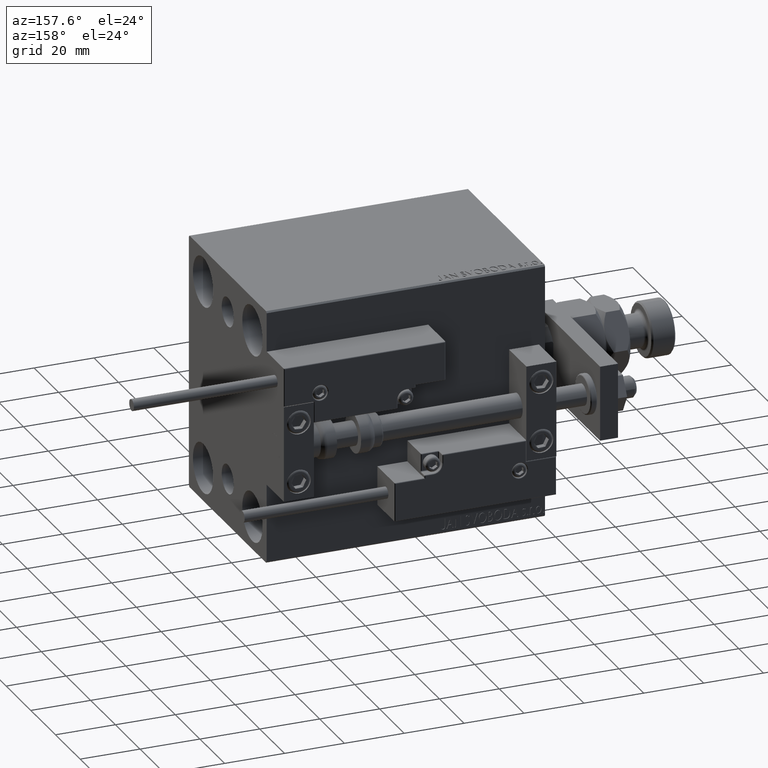
[diagram: clean part render]
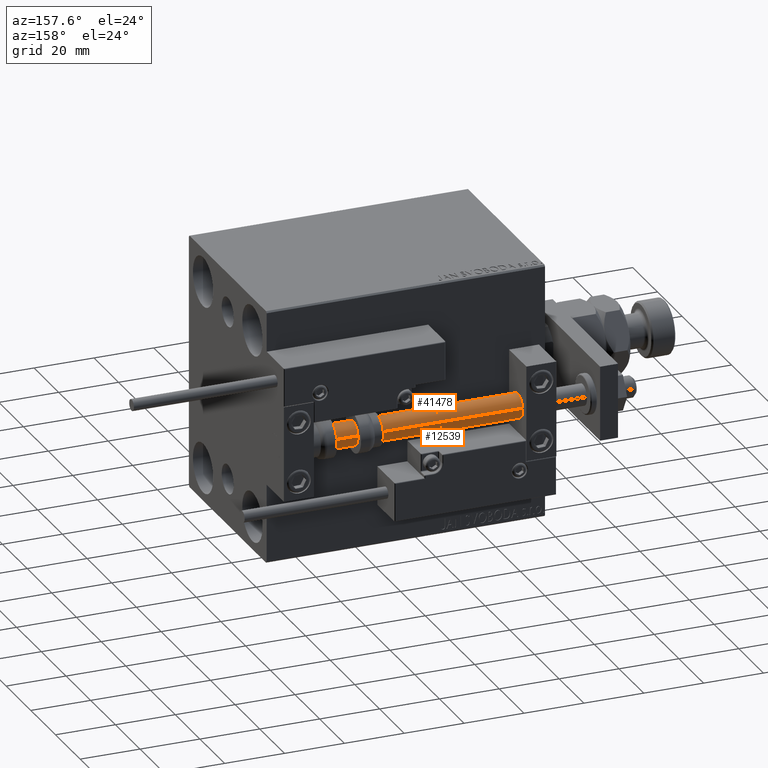
[diagram: same view with one multi-face feature highlighted, each face labeled with its STEP entity id]
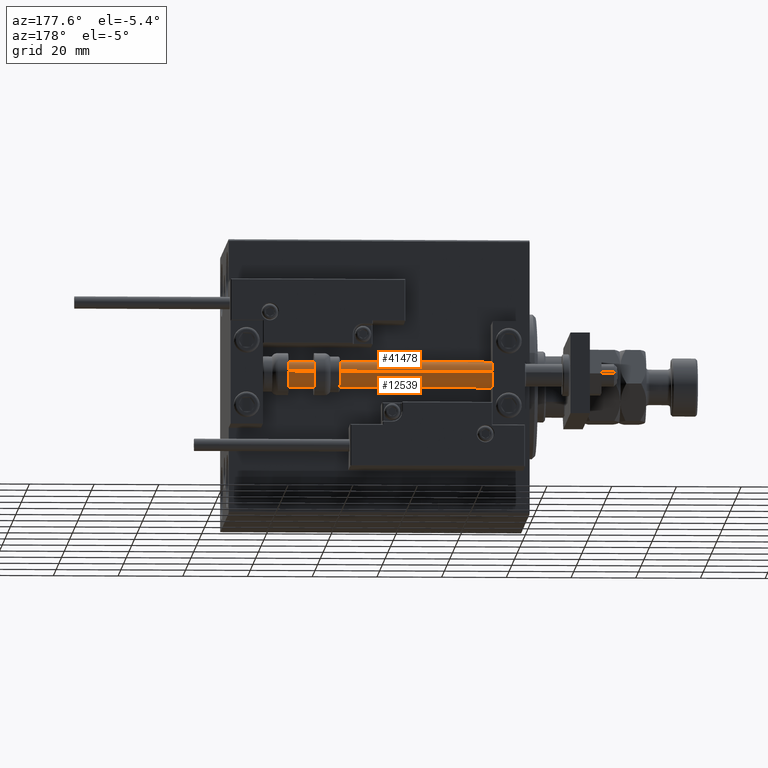
[diagram: same view with one multi-face feature highlighted, each face labeled with its STEP entity id]
A machine part, auxiliary view. The highlighted faces form ONE feature: a constant-radius fillet chain: 2 tangent blend faces with common blend radius 4 mm. The faces share edges in the B-rep.
A second angle (auxiliary view) of the same feature is appended — it is thin or edge-on in the first view.
Their STEP definitions:
[1] entity #41478 (Cylinder):
#1295 = EDGE_CURVE ( 'NONE', #5385, #18439, #50177, .T. ) ;
#2745 = ORIENTED_EDGE ( 'NONE', *, *, #23688, .T. ) ;
#3671 = AXIS2_PLACEMENT_3D ( 'NONE', #8959, #16276, #9214 ) ;
#4830 = VECTOR ( 'NONE', #7949, 1000.000000000000000 ) ;
#4915 = CARTESIAN_POINT ( 'NONE',  ( -4.000000000000000000, 0.000000000000000000, 93.00000000000000000 ) ) ;
#4990 = LINE ( 'NONE', #29322, #4830 ) ;
#5385 = VERTEX_POINT ( 'NONE', #4915 ) ;
#5744 = CIRCLE ( 'NONE', #51658, 4.000000000000000000 ) ;
#7949 = DIRECTION ( 'NONE',  ( -0.000000000000000000, -0.000000000000000000, -1.000000000000000000 ) ) ;
#8700 = CYLINDRICAL_SURFACE ( 'NONE', #3671, 4.000000000000000000 ) ;
#8959 = CARTESIAN_POINT ( 'NONE',  ( 0.000000000000000000, 0.000000000000000000, 93.00000000000000000 ) ) ;
#9214 = DIRECTION ( 'NONE',  ( -1.000000000000000000, 0.000000000000000000, 0.000000000000000000 ) ) ;
#10271 = ORIENTED_EDGE ( 'NONE', *, *, #11363, .T. ) ;
#11363 = EDGE_CURVE ( 'NONE', #47845, #18439, #5744, .T. ) ;
#13602 = EDGE_CURVE ( 'NONE', #18527, #5385, #46735, .T. ) ;
#13690 = ORIENTED_EDGE ( 'NONE', *, *, #1295, .F. ) ;
#15146 = DIRECTION ( 'NONE',  ( -0.000000000000000000, -0.000000000000000000, 1.000000000000000000 ) ) ;
#16276 = DIRECTION ( 'NONE',  ( -0.000000000000000000, -0.000000000000000000, -1.000000000000000000 ) ) ;
#18252 = CARTESIAN_POINT ( 'NONE',  ( -4.000000000000000000, 0.000000000000000000, 2.000000000000029310 ) ) ;
#18439 = VERTEX_POINT ( 'NONE', #18252 ) ;
#18527 = VERTEX_POINT ( 'NONE', #46488 ) ;
#18530 = CARTESIAN_POINT ( 'NONE',  ( -4.000000000000000000, 0.000000000000000000, 93.00000000000000000 ) ) ;
#19707 = CARTESIAN_POINT ( 'NONE',  ( 4.000000000000000000, 4.898587196589411843E-16, 2.000000000000029310 ) ) ;
#23688 = EDGE_CURVE ( 'NONE', #18527, #47845, #4990, .T. ) ;
#25175 = FACE_OUTER_BOUND ( 'NONE', #44030, .T. ) ;
#25600 = DIRECTION ( 'NONE',  ( 1.000000000000000000, 0.000000000000000000, 0.000000000000000000 ) ) ;
#27439 = CARTESIAN_POINT ( 'NONE',  ( 0.000000000000000000, 0.000000000000000000, 2.000000000000029310 ) ) ;
#29262 = DIRECTION ( 'NONE',  ( -0.000000000000000000, -0.000000000000000000, -1.000000000000000000 ) ) ;
#29322 = CARTESIAN_POINT ( 'NONE',  ( 4.000000000000000000, 4.898587196589411843E-16, 93.00000000000000000 ) ) ;
#37614 = CARTESIAN_POINT ( 'NONE',  ( 0.000000000000000000, 0.000000000000000000, 93.00000000000000000 ) ) ;
#39010 = ORIENTED_EDGE ( 'NONE', *, *, #13602, .F. ) ;
#41478 = ADVANCED_FACE ( 'NONE', ( #25175 ), #8700, .T. ) ;
#41738 = AXIS2_PLACEMENT_3D ( 'NONE', #37614, #42055, #25600 ) ;
#42055 = DIRECTION ( 'NONE',  ( 0.000000000000000000, 0.000000000000000000, 1.000000000000000000 ) ) ;
#43053 = VECTOR ( 'NONE', #29262, 1000.000000000000000 ) ;
#43384 = DIRECTION ( 'NONE',  ( 1.000000000000000000, 0.000000000000000000, 0.000000000000000000 ) ) ;
#44030 = EDGE_LOOP ( 'NONE', ( #39010, #2745, #10271, #13690 ) ) ;
#46488 = CARTESIAN_POINT ( 'NONE',  ( 4.000000000000000000, 4.898587196589411843E-16, 93.00000000000000000 ) ) ;
#46735 = CIRCLE ( 'NONE', #41738, 4.000000000000000000 ) ;
#47845 = VERTEX_POINT ( 'NONE', #19707 ) ;
#50177 = LINE ( 'NONE', #18530, #43053 ) ;
#51658 = AXIS2_PLACEMENT_3D ( 'NONE', #27439, #15146, #43384 ) ;
[2] entity #12539 (Cylinder):
#194 = FACE_OUTER_BOUND ( 'NONE', #2864, .T. ) ;
#1295 = EDGE_CURVE ( 'NONE', #5385, #18439, #50177, .T. ) ;
#2864 = EDGE_LOOP ( 'NONE', ( #28066, #9863, #19693, #39765 ) ) ;
#4159 = AXIS2_PLACEMENT_3D ( 'NONE', #25451, #28590, #17340 ) ;
#4392 = DIRECTION ( 'NONE',  ( -0.000000000000000000, -0.000000000000000000, -1.000000000000000000 ) ) ;
#4830 = VECTOR ( 'NONE', #7949, 1000.000000000000000 ) ;
#4906 = DIRECTION ( 'NONE',  ( 1.000000000000000000, 0.000000000000000000, 0.000000000000000000 ) ) ;
#4915 = CARTESIAN_POINT ( 'NONE',  ( -4.000000000000000000, 0.000000000000000000, 93.00000000000000000 ) ) ;
#4990 = LINE ( 'NONE', #29322, #4830 ) ;
#5385 = VERTEX_POINT ( 'NONE', #4915 ) ;
#7949 = DIRECTION ( 'NONE',  ( -0.000000000000000000, -0.000000000000000000, -1.000000000000000000 ) ) ;
#9863 = ORIENTED_EDGE ( 'NONE', *, *, #26824, .F. ) ;
#12256 = DIRECTION ( 'NONE',  ( -1.000000000000000000, 0.000000000000000000, 0.000000000000000000 ) ) ;
#12464 = EDGE_CURVE ( 'NONE', #18439, #47845, #45030, .T. ) ;
#12539 = ADVANCED_FACE ( 'NONE', ( #194 ), #32121, .T. ) ;
#17340 = DIRECTION ( 'NONE',  ( 1.000000000000000000, 0.000000000000000000, 0.000000000000000000 ) ) ;
#18252 = CARTESIAN_POINT ( 'NONE',  ( -4.000000000000000000, 0.000000000000000000, 2.000000000000029310 ) ) ;
#18439 = VERTEX_POINT ( 'NONE', #18252 ) ;
#18527 = VERTEX_POINT ( 'NONE', #46488 ) ;
#18530 = CARTESIAN_POINT ( 'NONE',  ( -4.000000000000000000, 0.000000000000000000, 93.00000000000000000 ) ) ;
#19693 = ORIENTED_EDGE ( 'NONE', *, *, #1295, .T. ) ;
#19707 = CARTESIAN_POINT ( 'NONE',  ( 4.000000000000000000, 4.898587196589411843E-16, 2.000000000000029310 ) ) ;
#22492 = AXIS2_PLACEMENT_3D ( 'NONE', #48074, #4392, #12256 ) ;
#23688 = EDGE_CURVE ( 'NONE', #18527, #47845, #4990, .T. ) ;
#24026 = CARTESIAN_POINT ( 'NONE',  ( 0.000000000000000000, 0.000000000000000000, 2.000000000000029310 ) ) ;
#25451 = CARTESIAN_POINT ( 'NONE',  ( 0.000000000000000000, 0.000000000000000000, 93.00000000000000000 ) ) ;
#26824 = EDGE_CURVE ( 'NONE', #5385, #18527, #34195, .T. ) ;
#28066 = ORIENTED_EDGE ( 'NONE', *, *, #23688, .F. ) ;
#28590 = DIRECTION ( 'NONE',  ( 0.000000000000000000, 0.000000000000000000, 1.000000000000000000 ) ) ;
#29262 = DIRECTION ( 'NONE',  ( -0.000000000000000000, -0.000000000000000000, -1.000000000000000000 ) ) ;
#29322 = CARTESIAN_POINT ( 'NONE',  ( 4.000000000000000000, 4.898587196589411843E-16, 93.00000000000000000 ) ) ;
#32121 = CYLINDRICAL_SURFACE ( 'NONE', #22492, 4.000000000000000000 ) ;
#33346 = AXIS2_PLACEMENT_3D ( 'NONE', #24026, #40479, #4906 ) ;
#34195 = CIRCLE ( 'NONE', #4159, 4.000000000000000000 ) ;
#39765 = ORIENTED_EDGE ( 'NONE', *, *, #12464, .T. ) ;
#40479 = DIRECTION ( 'NONE',  ( -0.000000000000000000, -0.000000000000000000, 1.000000000000000000 ) ) ;
#43053 = VECTOR ( 'NONE', #29262, 1000.000000000000000 ) ;
#45030 = CIRCLE ( 'NONE', #33346, 4.000000000000000000 ) ;
#46488 = CARTESIAN_POINT ( 'NONE',  ( 4.000000000000000000, 4.898587196589411843E-16, 93.00000000000000000 ) ) ;
#47845 = VERTEX_POINT ( 'NONE', #19707 ) ;
#48074 = CARTESIAN_POINT ( 'NONE',  ( 0.000000000000000000, 0.000000000000000000, 93.00000000000000000 ) ) ;
#50177 = LINE ( 'NONE', #18530, #43053 ) ;